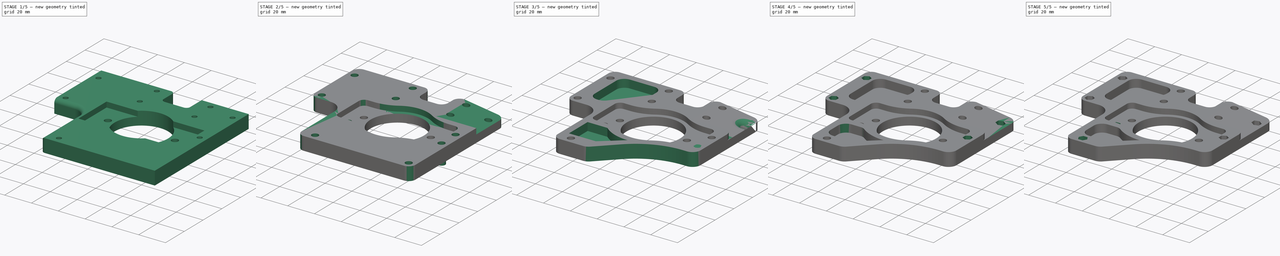
[diagram: build sequence overview — one tinted view per stage of 5, left to right]
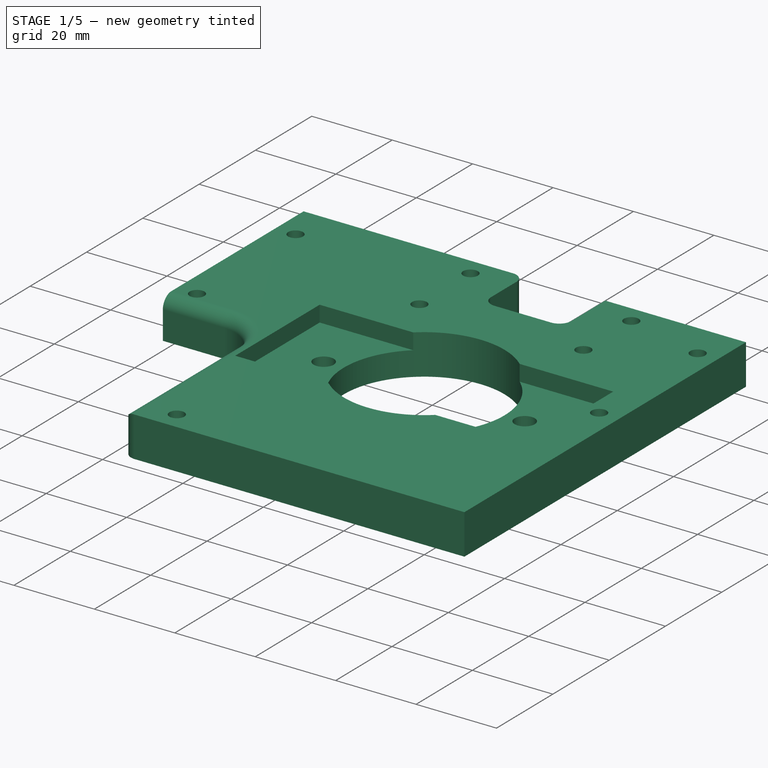
[diagram: stage 1 of 5 — iso view after this stage's code; geometry added in this stage tinted green]
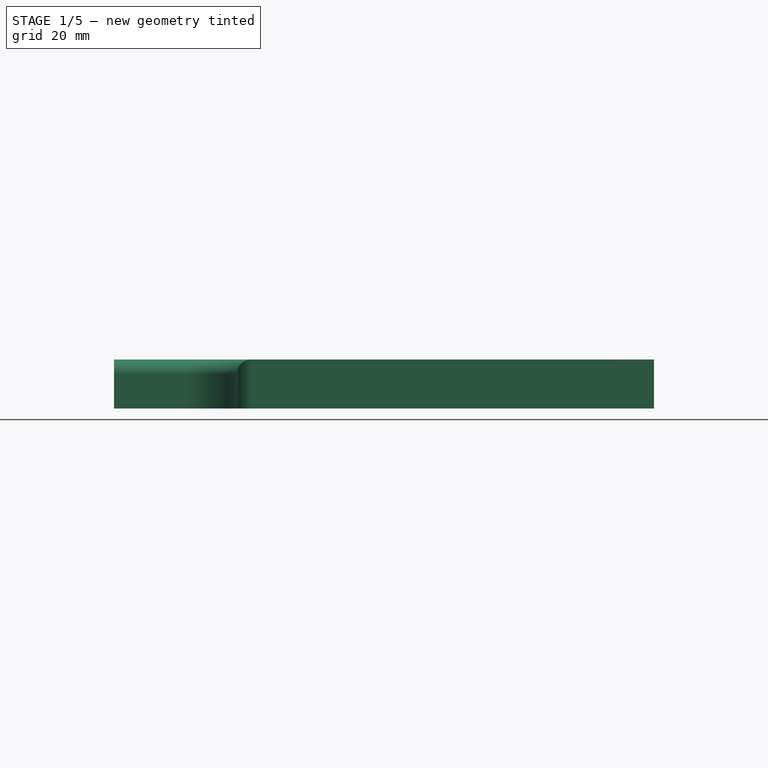
[diagram: stage 1 of 5 — front view after this stage's code; geometry added in this stage tinted green]
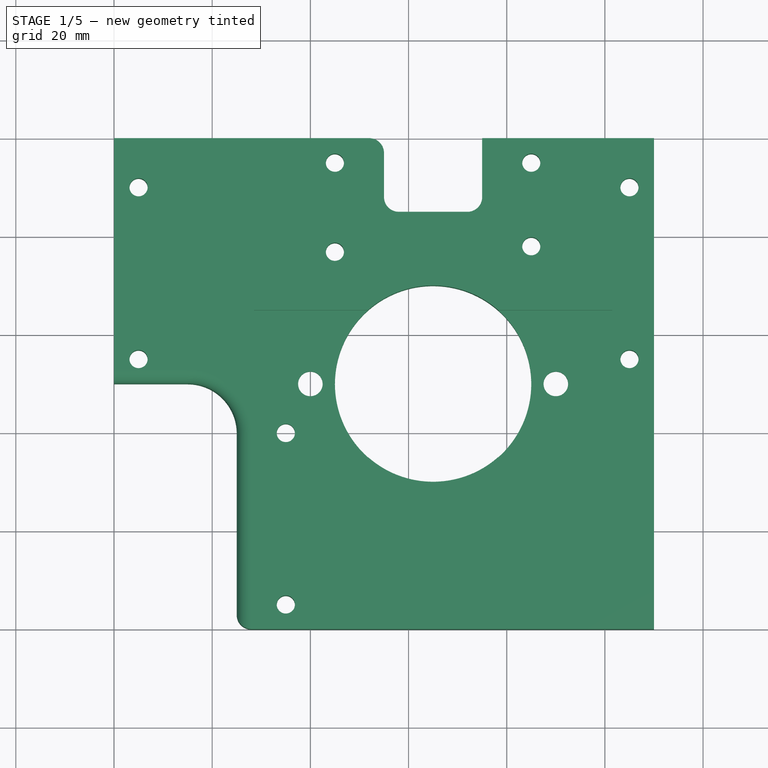
[diagram: stage 1 of 5 — top view after this stage's code; geometry added in this stage tinted green]
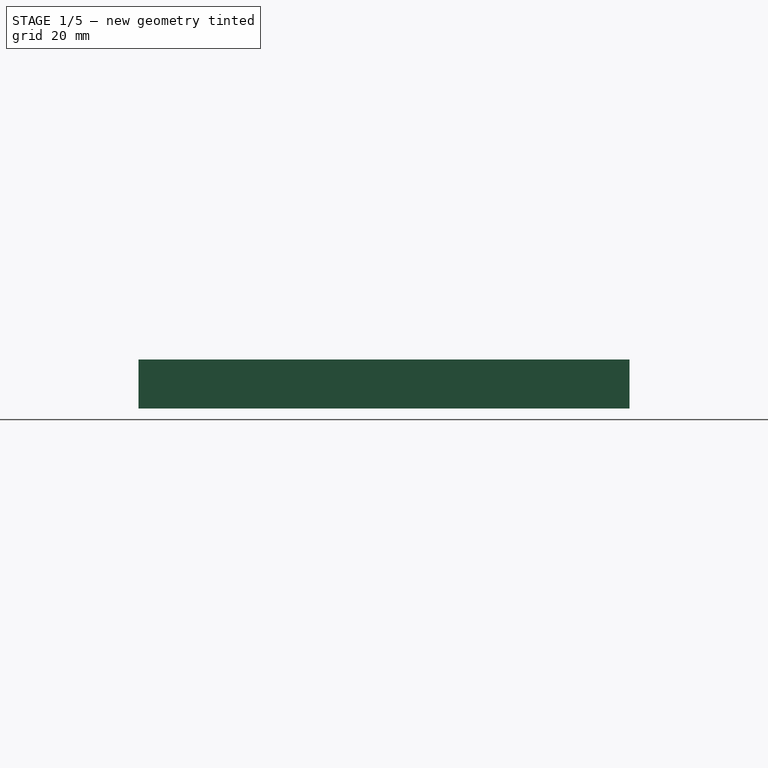
[diagram: stage 1 of 5 — right view after this stage's code; geometry added in this stage tinted green]
FCSTD DOCUMENT
Label: Anti-skip X Car.V1.4Hex
objects: Sketcher::SketchObject×19, PartDesign::Pocket×16, PartDesign::Fillet×8, PartDesign::Pad×2, PartDesign::LinearPattern×2
note: 65 computed .brp shape members not serialized (recipe doc carries the construction recipe); baked Part::Feature solids carry a one-line shape summary decoded from their .brp

FEATURE [Sketcher::SketchObject] Sketch
  sketch-geometry (25):
    g0: LineSegment StartX=25 StartY=0 StartZ=0 EndX=110 EndY=0 EndZ=0
    g1: LineSegment StartX=110 StartY=0 StartZ=0 EndX=110 EndY=100 EndZ=0
    g2: LineSegment StartX=110 StartY=100 StartZ=0 EndX=75 EndY=100 EndZ=0
    g3: LineSegment StartX=0 StartY=100 StartZ=0 EndX=0 EndY=50 EndZ=0
    g4: Circle CenterX=65 CenterY=50 CenterZ=0 NormalX=0 NormalY=0 NormalZ=1 Radius=20
    g5: Circle CenterX=105 CenterY=90 CenterZ=0 NormalX=0 NormalY=0 NormalZ=1 Radius=1.85
    g6: Circle [constr] CenterX=105 CenterY=5 CenterZ=0 NormalX=0 NormalY=0 NormalZ=1 Radius=1.85
    g7: Circle [constr] CenterX=105 CenterY=40 CenterZ=0 NormalX=0 NormalY=0 NormalZ=1 Radius=1.85
    g8: Circle CenterX=105 CenterY=55 CenterZ=0 NormalX=0 NormalY=0 NormalZ=1 Radius=1.85
    g9: Circle CenterX=90 CenterY=50 CenterZ=0 NormalX=0 NormalY=0 NormalZ=1 Radius=2.5
    g10: Circle CenterX=40 CenterY=50 CenterZ=0 NormalX=0 NormalY=0 NormalZ=1 Radius=2.5
    g11: Circle CenterX=5 CenterY=90 CenterZ=0 NormalX=0 NormalY=0 NormalZ=1 Radius=1.85
    g12: Circle CenterX=5 CenterY=55 CenterZ=0 NormalX=0 NormalY=0 NormalZ=1 Radius=1.85
    g13: Circle CenterX=35 CenterY=40 CenterZ=0 NormalX=0 NormalY=0 NormalZ=1 Radius=1.85
    g14: Circle CenterX=35 CenterY=5 CenterZ=0 NormalX=0 NormalY=0 NormalZ=1 Radius=1.85
    g15: LineSegment StartX=55 StartY=100 StartZ=0 EndX=55 EndY=85 EndZ=0
    g16: LineSegment StartX=55 StartY=85 StartZ=0 EndX=75 EndY=85 EndZ=0
    g17: LineSegment StartX=75 StartY=85 StartZ=0 EndX=75 EndY=100 EndZ=0
    g18: LineSegment StartX=55 StartY=100 StartZ=0 EndX=0 EndY=100 EndZ=0
    g19: LineSegment StartX=0 StartY=50 StartZ=0 EndX=25 EndY=50 EndZ=0
    g20: LineSegment StartX=25 StartY=50 StartZ=0 EndX=25 EndY=0 EndZ=0
    g21: Circle CenterX=45 CenterY=95 CenterZ=0 NormalX=0 NormalY=0 NormalZ=1 Radius=1.85
    g22: Circle CenterX=45 CenterY=76.8561 CenterZ=0 NormalX=0 NormalY=0 NormalZ=1 Radius=1.85
    g23: Circle CenterX=85 CenterY=95 CenterZ=0 NormalX=0 NormalY=0 NormalZ=1 Radius=1.85
    g24: Circle CenterX=85 CenterY=77.9862 CenterZ=0 NormalX=0 NormalY=0 NormalZ=1 Radius=1.85
  constraints (39):
    c: Coincident(g0,g1)
    c: Coincident(g1,g2)
    c: Coincident(g18,g3)
    c: Horizontal(g0)
    c: Horizontal(g2)
    c: Vertical(g1)
    c: Vertical(g3)
    c: DistanceX(g4) = 65
    c: DistanceY(g4) = 50
    c: Radius(g6) = 1.85
    c: Radius(g8) = 1.85
    c: Radius(g7) = 1.85
    c: Radius(g5) = 1.85
    c: Radius(g9) = 2.5
    c: Radius(g10) = 2.5
    c: Equal(g11,g12)
    c: Equal(g12,g13)
    c: Equal(g13,g14)
    c: Vertical(g15)
    c: Horizontal(g16)
    c: Coincident(g17,g16)
    c: Vertical(g17)
    c: Coincident(g2,g17)
    c: Coincident(g18,g15)
    c: Tangent(g2,g18)
    c: Horizontal(g19)
    c: Coincident(g20,g19)
    c: Vertical(g20)
    c: Coincident(g3,g19)
    c: Coincident(g0,g20)
    c: Equal(g22,g21)
    c: Equal(g21,g23)
    c: Equal(g23,g24)
    c: Equal(g24,g5)
    c: DistanceX(g21) = 45
    c: DistanceY(g21) = 95
    c: DistanceX(g23) = 85
    c: DistanceY(g23) = 95
    c: Equal(g11,g22)
FEATURE [PartDesign::Pad] Pad
  Length = 10
  Length2 = 100
  Sketch = -> Sketch
  Type = 0
FEATURE [PartDesign::Fillet] Fillet
  Base = -> Pad [Edge14]
  Radius = 10
FEATURE [PartDesign::Fillet] Fillet001
  Base = -> Fillet [Edge57,Edge59,Edge60,Edge3,Edge32,Edge58,Edge61,Edge63,Edge62]
  Radius = 3
FEATURE [Sketcher::SketchObject] Sketch001
  Placement = pos=(0,0,0) rot=(1,0,0;3.14159rad)
  Support = -> Fillet001 [Face2]
  sketch-geometry (2):
    g0: Circle CenterX=40 CenterY=-50 CenterZ=0 NormalX=0 NormalY=0 NormalZ=1 Radius=3.75
    g1: Circle [constr] CenterX=90 CenterY=-50 CenterZ=0 NormalX=0 NormalY=0 NormalZ=1 Radius=3.75
  constraints (2):
    c: Radius(g0) = 3.75
    c: Equal(g1,g0)
FEATURE [PartDesign::Pocket] Pocket
  Length = 3
  Sketch = -> Sketch001
  Type = 0
FEATURE [Sketcher::SketchObject] Sketch002
  Placement = pos=(0,0,0) rot=(1,0,0;3.14159rad)
  Support = -> Pocket [Face2]
  sketch-geometry (1):
    g0: Circle CenterX=90 CenterY=-50 CenterZ=0 NormalX=0 NormalY=0 NormalZ=1 Radius=3.75
  constraints (1):
    c: Radius(g0) = 3.75
FEATURE [PartDesign::Pocket] Pocket001
  Length = 3
  Sketch = -> Sketch002
  Type = 0
FEATURE [Sketcher::SketchObject] Sketch003
  Placement = pos=(0,0,10) rot=(0,0,1;0rad)
  Support = -> Pocket001 [Face5]
  sketch-geometry (8):
    g0: LineSegment [constr] StartX=65 StartY=50 StartZ=0 EndX=101.5 EndY=50 EndZ=0
    g1: LineSegment [constr] StartX=101.5 StartY=50 StartZ=0 EndX=101.5 EndY=65 EndZ=0
    g2: LineSegment [constr] StartX=101.5 StartY=65 StartZ=0 EndX=65 EndY=65 EndZ=0
    g3: LineSegment [constr] StartX=65 StartY=65 StartZ=0 EndX=65 EndY=50 EndZ=0
    g4: LineSegment StartX=101.5 StartY=65 StartZ=0 EndX=28.5 EndY=65 EndZ=0
    g5: LineSegment StartX=28.5 StartY=65 StartZ=0 EndX=28.5 EndY=35 EndZ=0
    g6: LineSegment StartX=28.5 StartY=35 StartZ=0 EndX=101.5 EndY=35 EndZ=0
    g7: LineSegment StartX=101.5 StartY=35 StartZ=0 EndX=101.5 EndY=65 EndZ=0
  constraints (23):
    c: Coincident(g0,g1)
    c: Coincident(g1,g2)
    c: Coincident(g2,g3)
    c: Coincident(g3,g0)
    c: Horizontal(g0)
    c: Horizontal(g2)
    c: Vertical(g1)
    c: Vertical(g3)
    c: DistanceX(g0) = 65
    c: DistanceY(g0) = 50
    c: DistanceY(g3) = -15
    c: DistanceX(g0) = 36.5
    c: Coincident(g4,g5)
    c: Coincident(g5,g6)
    c: Coincident(g6,g7)
    c: Coincident(g7,g4)
    c: Horizontal(g4)
    c: Horizontal(g6)
    c: Vertical(g5)
    c: Vertical(g7)
    c: Coincident(g4,g1)
    c: DistanceX(g4) = -73
    c: DistanceY(g5) = -30
FEATURE [PartDesign::Pocket] Pocket002
  Length = 4
  Sketch = -> Sketch003
  Type = 0
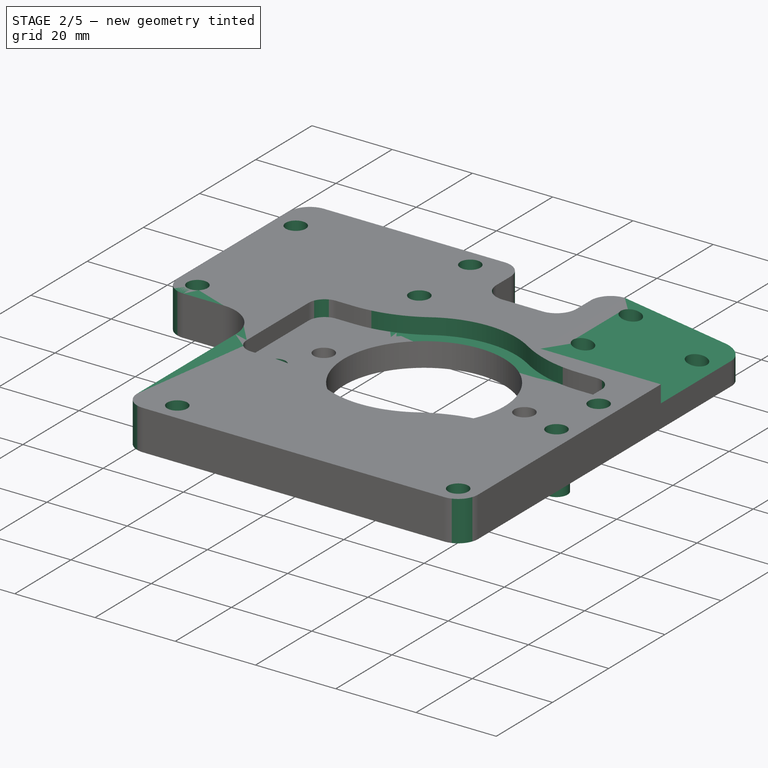
[diagram: stage 2 of 5 — iso view after this stage's code; geometry added in this stage tinted green]
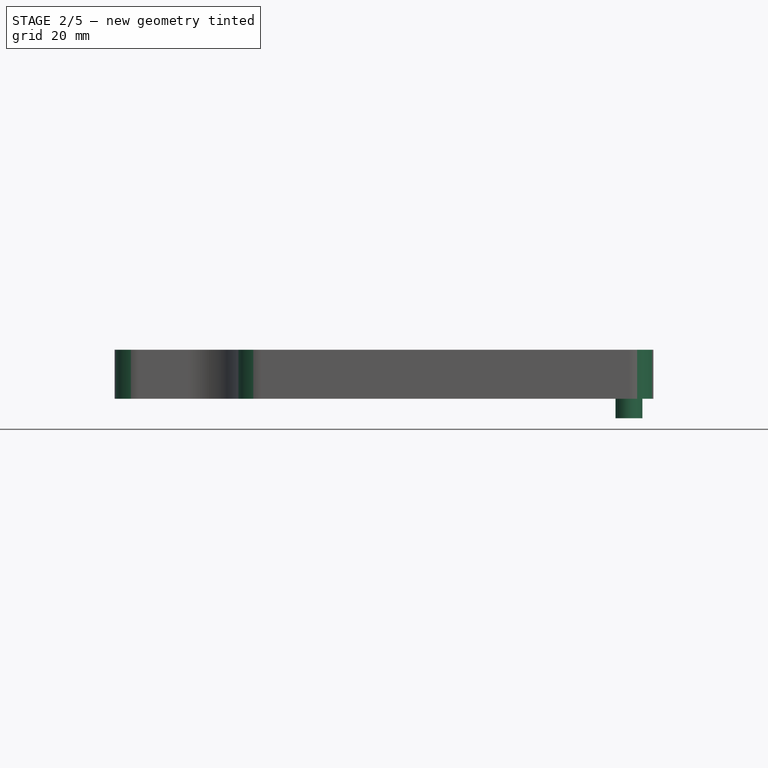
[diagram: stage 2 of 5 — front view after this stage's code; geometry added in this stage tinted green]
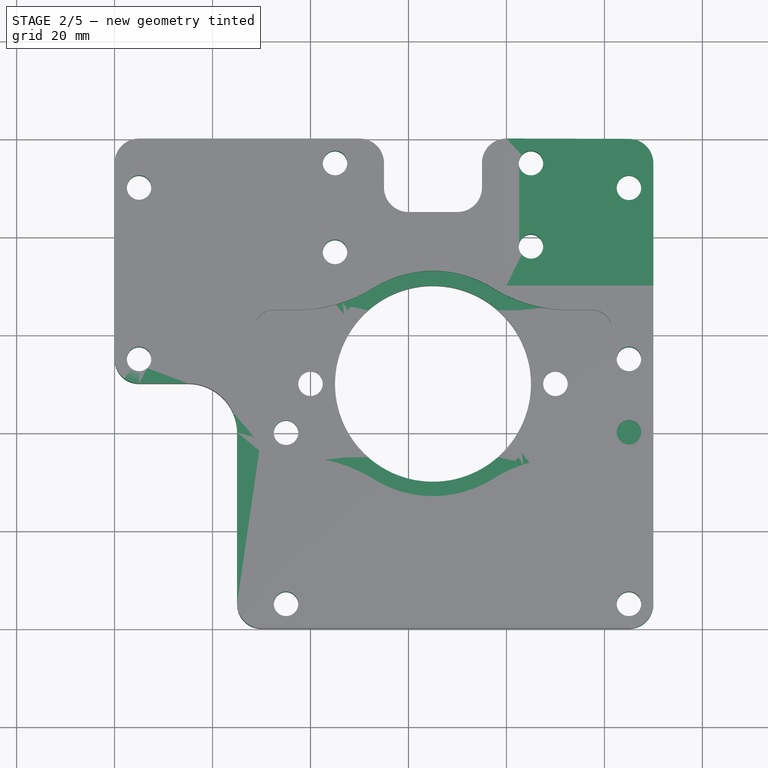
[diagram: stage 2 of 5 — top view after this stage's code; geometry added in this stage tinted green]
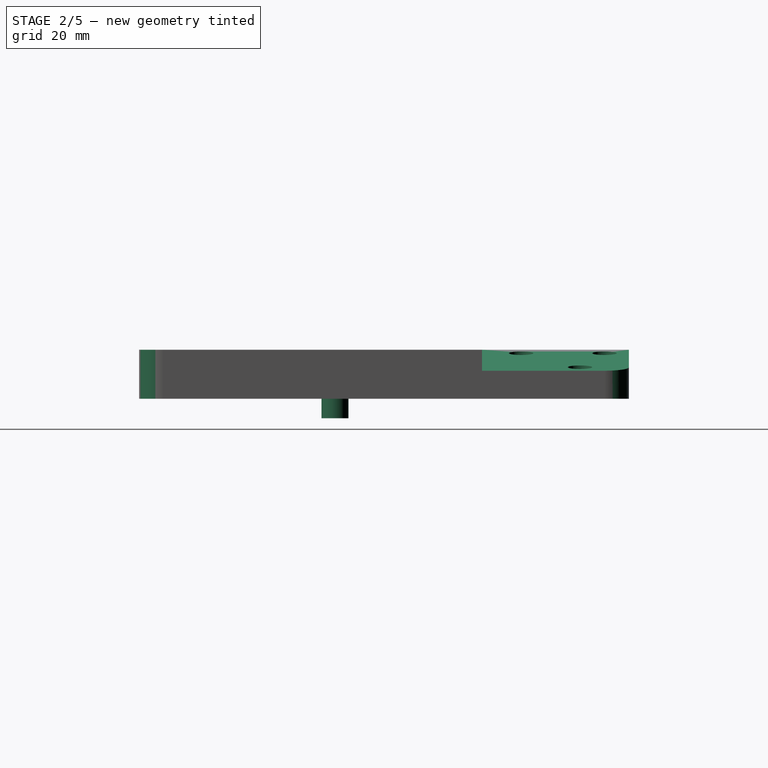
[diagram: stage 2 of 5 — right view after this stage's code; geometry added in this stage tinted green]
FEATURE [PartDesign::Fillet] Fillet002
  Base = -> Pocket002 [Edge127,Edge125,Edge130,Edge124]
  Radius = 4
FEATURE [Sketcher::SketchObject] Sketch004
  Placement = pos=(0,0,10) rot=(0,0,1;0rad)
  Support = -> Fillet002 [Face1]
  sketch-geometry (1):
    g0: Circle CenterX=65 CenterY=50 CenterZ=0 NormalX=0 NormalY=0 NormalZ=1 Radius=23
  constraints (3):
    c: DistanceX(g0) = 65
    c: DistanceY(g0) = 50
    c: Radius(g0) = 23
FEATURE [PartDesign::Pocket] Pocket003
  Length = 4
  Sketch = -> Sketch004
  Type = 0
FEATURE [PartDesign::Fillet] Fillet003
  Base = -> Pocket003 [Edge57,Edge68,Edge69,Edge48]
  Radius = 30
FEATURE [Sketcher::SketchObject] Sketch005
  Placement = pos=(0,100,0) rot=(0,0.707107,0.707107;3.14159rad)
  Support = -> Fillet003 [Face29]
  sketch-geometry (3):
    g0: LineSegment StartX=-80 StartY=10 StartZ=0 EndX=-150 EndY=0 EndZ=0
    g1: LineSegment StartX=-80 StartY=10 StartZ=0 EndX=-150 EndY=10 EndZ=0
    g2: LineSegment StartX=-150 StartY=10 StartZ=0 EndX=-150 EndY=0 EndZ=0
  constraints (5):
    c: Coincident(g1,g0)
    c: Horizontal(g1)
    c: Coincident(g2,g1)
    c: Coincident(g2,g0)
    c: Vertical(g2)
FEATURE [PartDesign::Pocket] Pocket004
  Length = 30
  Sketch = -> Sketch005
  Type = 0
FEATURE [Sketcher::SketchObject] Sketch006
  Placement = pos=(0,0,6) rot=(0,0,1;0rad)
  Support = -> Pocket004 [Face2]
  sketch-geometry (2):
    g0: Circle CenterX=105 CenterY=40 CenterZ=0 NormalX=0 NormalY=0 NormalZ=1 Radius=2.75
    g1: Circle [constr] CenterX=105 CenterY=5 CenterZ=0 NormalX=0 NormalY=0 NormalZ=1 Radius=2.75
  constraints (6):
    c: DistanceX(g1) = 105
    c: DistanceY(g1) = 5
    c: DistanceX(g0) = 105
    c: DistanceY(g0) = 40
    c: Radius(g0) = 2.75
    c: Equal(g1,g0)
FEATURE [PartDesign::Pad] Pad001
  Length = 10
  Length2 = 100
  Reversed = true
  Sketch = -> Sketch006
  Type = 0
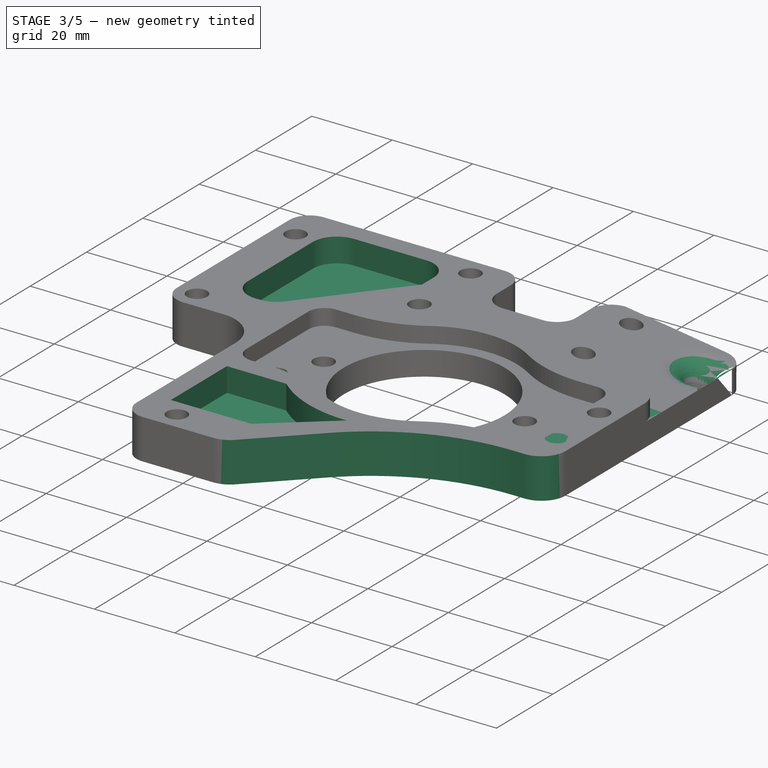
[diagram: stage 3 of 5 — iso view after this stage's code; geometry added in this stage tinted green]
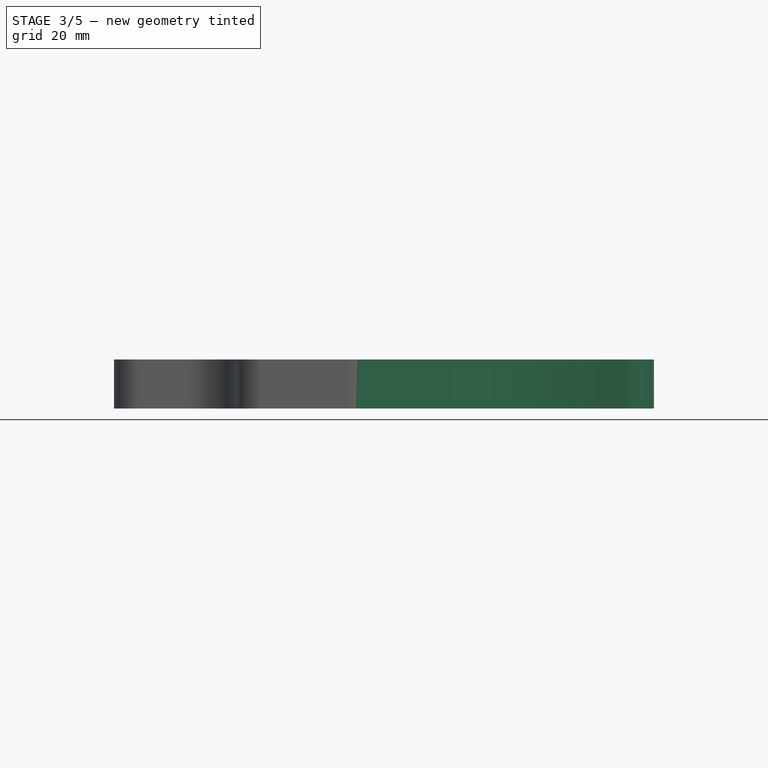
[diagram: stage 3 of 5 — front view after this stage's code; geometry added in this stage tinted green]
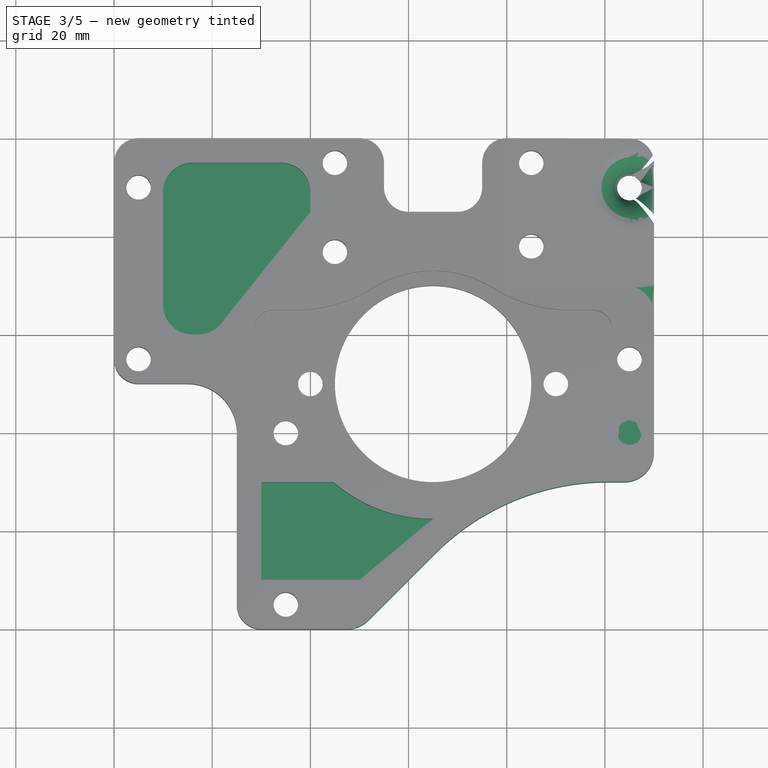
[diagram: stage 3 of 5 — top view after this stage's code; geometry added in this stage tinted green]
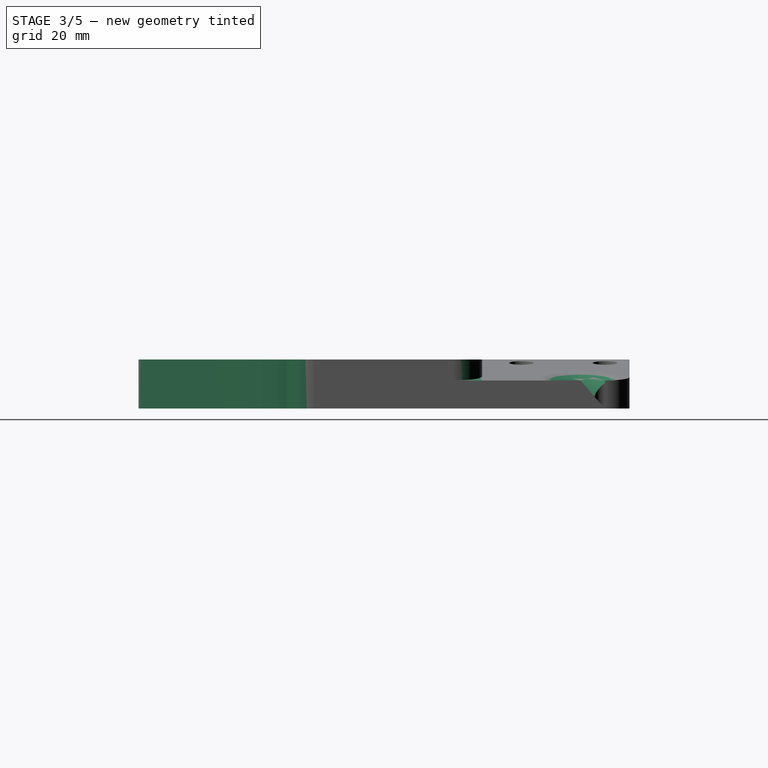
[diagram: stage 3 of 5 — right view after this stage's code; geometry added in this stage tinted green]
FEATURE [Sketcher::SketchObject] Sketch007
  Placement = pos=(0,0,6) rot=(0,0,1;0rad)
  Support = -> Pad001 [Face2]
  sketch-geometry (4):
    g0: LineSegment StartX=110 StartY=30 StartZ=0 EndX=80 EndY=30 EndZ=0
    g1: LineSegment StartX=50 StartY=0 StartZ=0 EndX=80 EndY=30 EndZ=0
    g2: LineSegment StartX=50 StartY=0 StartZ=0 EndX=110 EndY=0 EndZ=0
    g3: LineSegment StartX=110 StartY=0 StartZ=0 EndX=110 EndY=30 EndZ=0
  constraints (12):
    c: Horizontal(g0)
    c: Coincident(g1,g0)
    c: Coincident(g2,g1)
    c: Horizontal(g2)
    c: Coincident(g3,g2)
    c: Coincident(g3,g0)
    c: Vertical(g3)
    c: DistanceX(g1) = 50
    c: DistanceY(g1) = 0
    c: DistanceX(g2) = 60
    c: DistanceY(g3) = 30
    c: DistanceX(g0) = -30
FEATURE [PartDesign::Pocket] Pocket005
  Length = 5
  Sketch = -> Sketch007
  Type = 0
FEATURE [PartDesign::Fillet] Fillet004
  Base = -> Pocket005 [Edge57]
  Radius = 50
FEATURE [PartDesign::Fillet] Fillet005
  Base = -> Fillet004 [Edge55,Edge47]
  Radius = 6
FEATURE [Sketcher::SketchObject] Sketch008
  Placement = pos=(0,0,10) rot=(0,0,1;0rad)
  Support = -> Fillet005 [Face1]
  sketch-geometry (5):
    g0: LineSegment StartX=40 StartY=95 StartZ=0 EndX=10 EndY=95 EndZ=0
    g1: LineSegment StartX=10 StartY=95 StartZ=0 EndX=10 EndY=60 EndZ=0
    g2: LineSegment StartX=10 StartY=60 StartZ=0 EndX=20 EndY=60 EndZ=0
    g3: LineSegment StartX=40 StartY=95 StartZ=0 EndX=40 EndY=85 EndZ=0
    g4: LineSegment StartX=40 StartY=85 StartZ=0 EndX=20 EndY=60 EndZ=0
  constraints (15):
    c: Horizontal(g0)
    c: Coincident(g1,g0)
    c: Vertical(g1)
    c: Coincident(g2,g1)
    c: Horizontal(g2)
    c: Coincident(g3,g0)
    c: Vertical(g3)
    c: Coincident(g4,g3)
    c: Coincident(g4,g2)
    c: DistanceX(g0) = 10
    c: DistanceY(g0) = 95
    c: DistanceY(g1) = -35
    c: DistanceX(g0) = -30
    c: DistanceY(g3) = -10
    c: DistanceX(g2) = 10
FEATURE [PartDesign::Pocket] Pocket006
  Length = 6
  Sketch = -> Sketch008
  Type = 0
FEATURE [Sketcher::SketchObject] Sketch009
  Placement = pos=(0,0,10) rot=(0,0,1;0rad)
  Support = -> Pocket006 [Face2]
  sketch-geometry (5):
    g0: LineSegment StartX=30 StartY=10 StartZ=0 EndX=30 EndY=29.8912 EndZ=0
    g1: LineSegment StartX=30 StartY=10 StartZ=0 EndX=50 EndY=10 EndZ=0
    g2: LineSegment StartX=50 StartY=10 StartZ=0 EndX=65 EndY=22.47 EndZ=0
    g3: LineSegment StartX=30 StartY=29.8912 StartZ=0 EndX=44.7945 EndY=29.8912 EndZ=0
    g4: ArcOfCircle CenterX=64.5518 CenterY=52.4666 CenterZ=0 NormalX=0 NormalY=0 NormalZ=1 Radius=30 StartAngle=3.99346 EndAngle=4.72733
  constraints (15):
    c: Vertical(g0)
    c: Coincident(g1,g0)
    c: Horizontal(g1)
    c: Coincident(g3,g0)
    c: Horizontal(g3)
    c: Coincident(g4,g3)
    c: Coincident(g2,g4)
    c: DistanceX(g0) = 30
    c: DistanceY(g0) = 10
    c: DistanceY(g0) = 19.8912
    c: DistanceX(g1) = 20
    c: DistanceX(g3) = 14.7945
    c: DistanceX(g2) = 65
    c: DistanceY(g2) = 22.47
    c: Radius(g4) = 30
FEATURE [PartDesign::Pocket] Pocket007
  Length = 6
  Sketch = -> Sketch009
  Type = 0
FEATURE [PartDesign::Fillet] Fillet006
  Base = -> Pocket007 [Edge112,Edge117,Edge119,Edge115,Edge114,Edge108,Edge102,Edge104,Edge110]
  Radius = 6
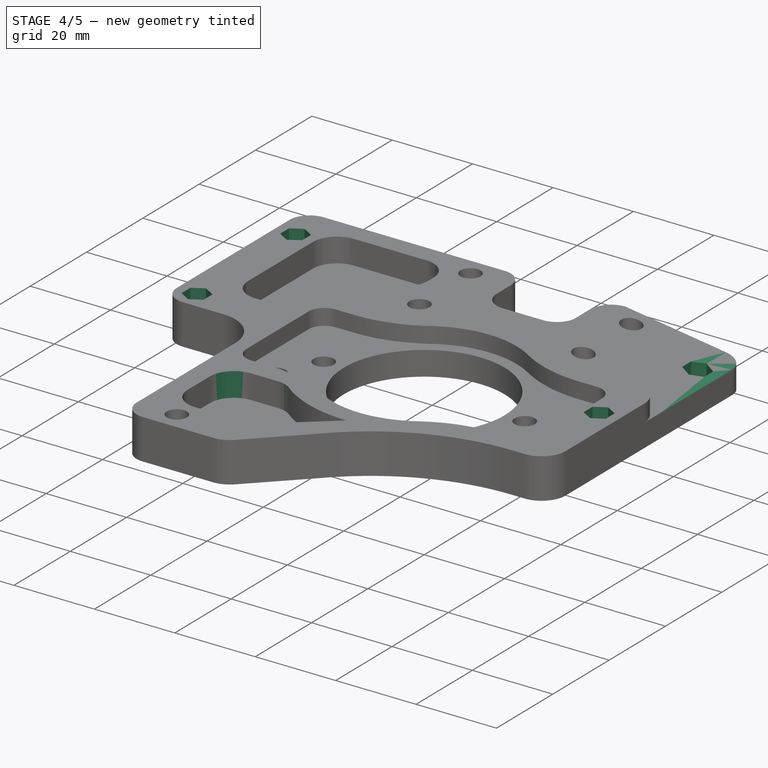
[diagram: stage 4 of 5 — iso view after this stage's code; geometry added in this stage tinted green]
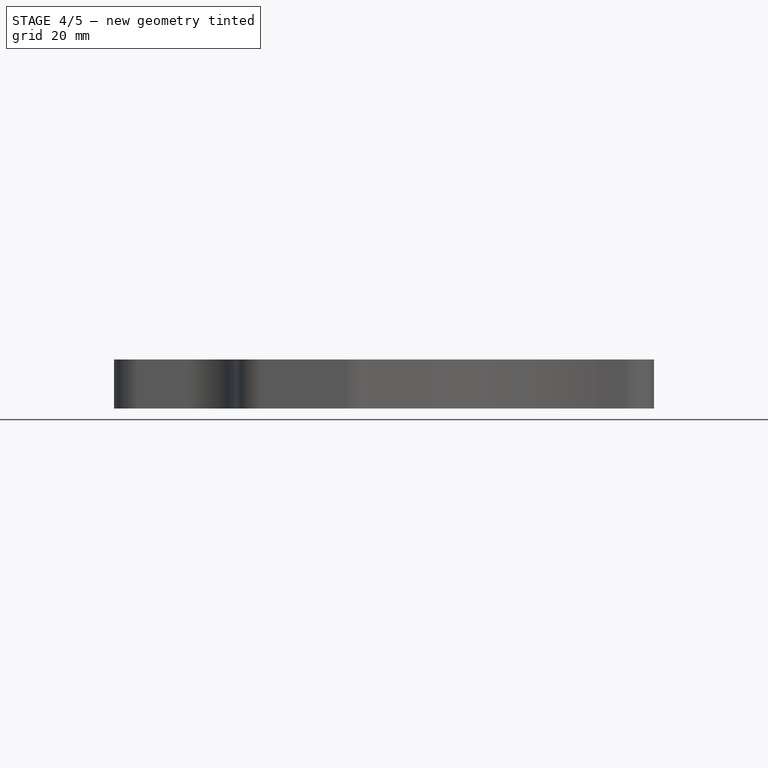
[diagram: stage 4 of 5 — front view after this stage's code; geometry added in this stage tinted green]
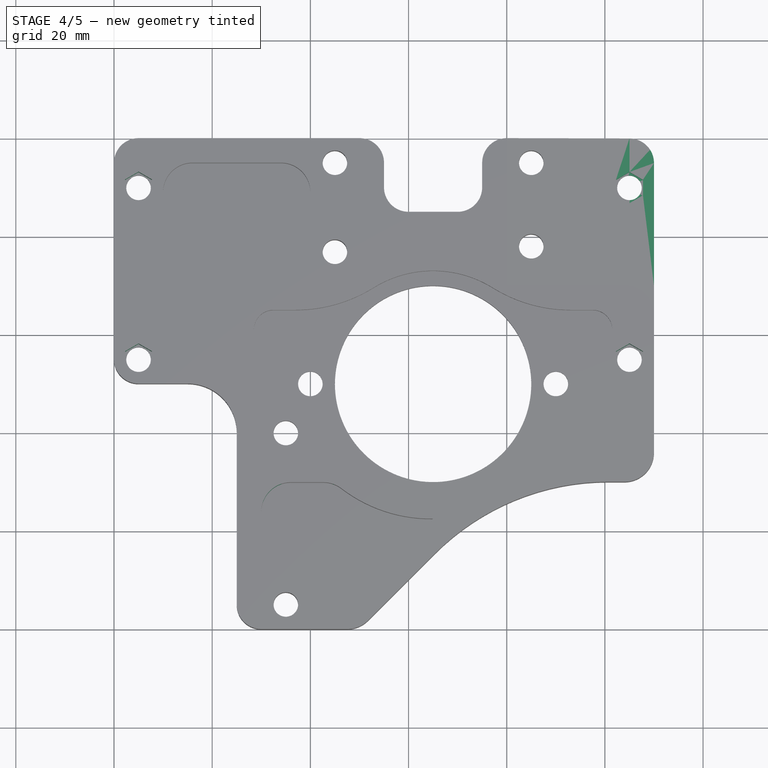
[diagram: stage 4 of 5 — top view after this stage's code; geometry added in this stage tinted green]
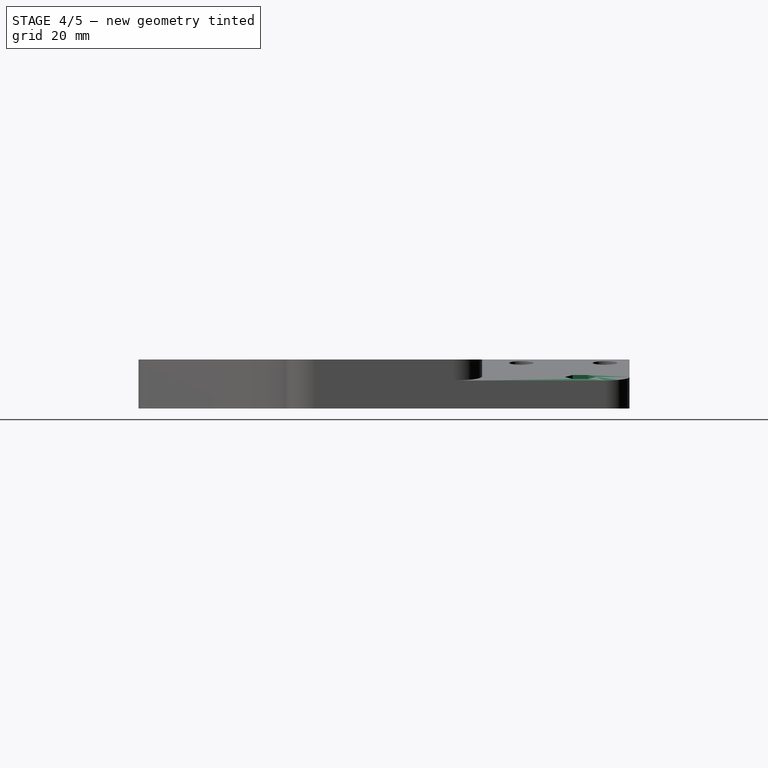
[diagram: stage 4 of 5 — right view after this stage's code; geometry added in this stage tinted green]
FEATURE [PartDesign::Fillet] Fillet007
  Base = -> Fillet006 [Edge92]
  Radius = 6
FEATURE [Sketcher::SketchObject] Sketch010
  Placement = pos=(0,0,10) rot=(0,0,1;0rad)
  Support = -> Fillet007 [Face1]
  sketch-geometry (7):
    g0: Circle [constr] CenterX=5 CenterY=90 CenterZ=0 NormalX=0 NormalY=0 NormalZ=1 Radius=2.75
    g1: LineSegment StartX=5 StartY=93.1754 StartZ=0 EndX=7.75 EndY=91.5877 EndZ=0
    g2: LineSegment StartX=7.75 StartY=91.5877 StartZ=0 EndX=7.75 EndY=88.4123 EndZ=0
    g3: LineSegment StartX=7.75 StartY=88.4123 StartZ=0 EndX=5 EndY=86.8246 EndZ=0
    g4: LineSegment StartX=5 StartY=86.8246 StartZ=0 EndX=2.25 EndY=88.4123 EndZ=0
    g5: LineSegment StartX=2.25 StartY=88.4123 StartZ=0 EndX=2.25 EndY=91.5877 EndZ=0
    g6: LineSegment StartX=2.25 StartY=91.5877 StartZ=0 EndX=5 EndY=93.1754 EndZ=0
  constraints (22):
    c: Radius(g0) = 2.75
    c: Tangent(g1,g0)
    c: Coincident(g2,g1)
    c: Tangent(g2,g0)
    c: Coincident(g3,g2)
    c: Tangent(g3,g0)
    c: Coincident(g4,g3)
    c: Tangent(g4,g0)
    c: Coincident(g5,g4)
    c: Vertical(g5)
    c: Tangent(g5,g0)
    c: Coincident(g6,g5)
    c: Coincident(g6,g1)
    c: Tangent(g6,g0)
    c: Vertical(g2)
    c: Equal(g1,g2)
    c: Equal(g2,g3)
    c: Equal(g3,g6)
    c: Equal(g3,g4)
    c: Equal(g4,g5)
    c: DistanceX(g0) = 5
    c: DistanceY(g0) = 90
FEATURE [PartDesign::Pocket] Pocket008  label="Hex Hole 1"
  Length = 7
  Sketch = -> Sketch010
  Type = 0
FEATURE [Sketcher::SketchObject] Sketch011
  Placement = pos=(0,0,10) rot=(0,0,1;0rad)
  Support = -> Pocket008 [Face2]
  sketch-geometry (7):
    g0: Circle [constr] CenterX=5 CenterY=55 CenterZ=0 NormalX=0 NormalY=0 NormalZ=1 Radius=2.75
    g1: LineSegment StartX=5 StartY=51.8246 StartZ=0 EndX=7.75 EndY=53.4123 EndZ=0
    g2: LineSegment StartX=7.75 StartY=53.4123 StartZ=0 EndX=7.75 EndY=56.5877 EndZ=0
    g3: LineSegment StartX=7.75 StartY=56.5877 StartZ=0 EndX=5 EndY=58.1754 EndZ=0
    g4: LineSegment StartX=5 StartY=58.1754 StartZ=0 EndX=2.25 EndY=56.5877 EndZ=0
    g5: LineSegment StartX=2.25 StartY=56.5877 StartZ=0 EndX=2.25 EndY=53.4123 EndZ=0
    g6: LineSegment StartX=2.25 StartY=53.4123 StartZ=0 EndX=5 EndY=51.8246 EndZ=0
  constraints (22):
    c: Radius(g0) = 2.75
    c: Tangent(g1,g0)
    c: Coincident(g1,g2)
    c: Tangent(g2,g0)
    c: Coincident(g2,g3)
    c: Tangent(g3,g0)
    c: Coincident(g3,g4)
    c: Tangent(g4,g0)
    c: Coincident(g4,g5)
    c: Tangent(g5,g0)
    c: Coincident(g5,g6)
    c: Tangent(g6,g0)
    c: Coincident(g6,g1)
    c: Vertical(g2)
    c: Vertical(g5)
    c: Equal(g2,g5)
    c: Equal(g5,g6)
    c: Equal(g6,g1)
    c: Equal(g4,g3)
    c: Equal(g3,g2)
    c: DistanceX(g0) = 5
    c: DistanceY(g0) = 55
FEATURE [PartDesign::Pocket] Pocket009  label="Hex Hole 2"
  Length = 7
  Sketch = -> Sketch011
  Type = 0
FEATURE [Sketcher::SketchObject] Sketch012
  Placement = pos=(0,0,10) rot=(0,0,1;0rad)
  Support = -> Pocket009 [Face2]
  sketch-geometry (7):
    g0: Circle [constr] CenterX=105 CenterY=55 CenterZ=0 NormalX=0 NormalY=0 NormalZ=1 Radius=2.75
    g1: LineSegment StartX=105 StartY=58.1754 StartZ=0 EndX=107.75 EndY=56.5877 EndZ=0
    g2: LineSegment StartX=107.75 StartY=56.5877 StartZ=0 EndX=107.75 EndY=53.4123 EndZ=0
    g3: LineSegment StartX=107.75 StartY=53.4123 StartZ=0 EndX=105 EndY=51.8246 EndZ=0
    g4: LineSegment StartX=105 StartY=51.8246 StartZ=0 EndX=102.25 EndY=53.4123 EndZ=0
    g5: LineSegment StartX=102.25 StartY=53.4123 StartZ=0 EndX=102.25 EndY=56.5877 EndZ=0
    g6: LineSegment StartX=102.25 StartY=56.5877 StartZ=0 EndX=105 EndY=58.1754 EndZ=0
  constraints (22):
    c: Tangent(g1,g0)
    c: Coincident(g2,g1)
    c: Tangent(g2,g0)
    c: Coincident(g2,g3)
    c: Tangent(g3,g0)
    c: Coincident(g3,g4)
    c: Tangent(g4,g0)
    c: Coincident(g4,g5)
    c: Tangent(g5,g0)
    c: Coincident(g5,g6)
    c: Coincident(g6,g1)
    c: Tangent(g6,g0)
    c: Vertical(g2)
    c: Vertical(g5)
    c: Equal(g1,g6)
    c: Equal(g6,g5)
    c: Equal(g5,g4)
    c: Equal(g4,g3)
    c: Equal(g3,g2)
    c: Radius(g0) = 2.75
    c: DistanceX(g0) = 105
    c: DistanceY(g0) = 55
FEATURE [PartDesign::Pocket] Pocket010
  Length = 7
  Sketch = -> Sketch012
  Type = 0
FEATURE [Sketcher::SketchObject] Sketch013
  Placement = pos=(0,0,10) rot=(0,0,1;0rad)
  Support = -> Pocket010 [Face2]
  sketch-geometry (7):
    g0: Circle [constr] CenterX=105 CenterY=90 CenterZ=0 NormalX=0 NormalY=0 NormalZ=1 Radius=2.75
    g1: LineSegment StartX=105 StartY=93.1754 StartZ=0 EndX=107.75 EndY=91.5877 EndZ=0
    g2: LineSegment StartX=107.75 StartY=91.5877 StartZ=0 EndX=107.75 EndY=88.4123 EndZ=0
    g3: LineSegment StartX=107.75 StartY=88.4123 StartZ=0 EndX=105 EndY=86.8246 EndZ=0
    g4: LineSegment StartX=105 StartY=93.1754 StartZ=0 EndX=102.25 EndY=91.5877 EndZ=0
    g5: LineSegment StartX=102.25 StartY=91.5877 StartZ=0 EndX=102.25 EndY=88.4123 EndZ=0
    g6: LineSegment StartX=102.25 StartY=88.4123 StartZ=0 EndX=105 EndY=86.8246 EndZ=0
  constraints (22):
    c: Tangent(g1,g0)
    c: Coincident(g1,g2)
    c: Tangent(g2,g0)
    c: Coincident(g2,g3)
    c: Tangent(g3,g0)
    c: Coincident(g1,g4)
    c: Tangent(g4,g0)
    c: Coincident(g4,g5)
    c: Tangent(g5,g0)
    c: Coincident(g5,g6)
    c: Coincident(g6,g3)
    c: Tangent(g6,g0)
    c: Vertical(g2)
    c: Vertical(g5)
    c: Equal(g2,g1)
    c: Equal(g1,g4)
    c: Equal(g4,g5)
    c: Equal(g3,g6)
    c: Equal(g6,g2)
    c: Radius(g0) = 2.75
    c: DistanceX(g0) = 105
    c: DistanceY(g0) = 90
FEATURE [PartDesign::Pocket] Pocket011
  Length = 7
  Sketch = -> Sketch013
  Type = 0
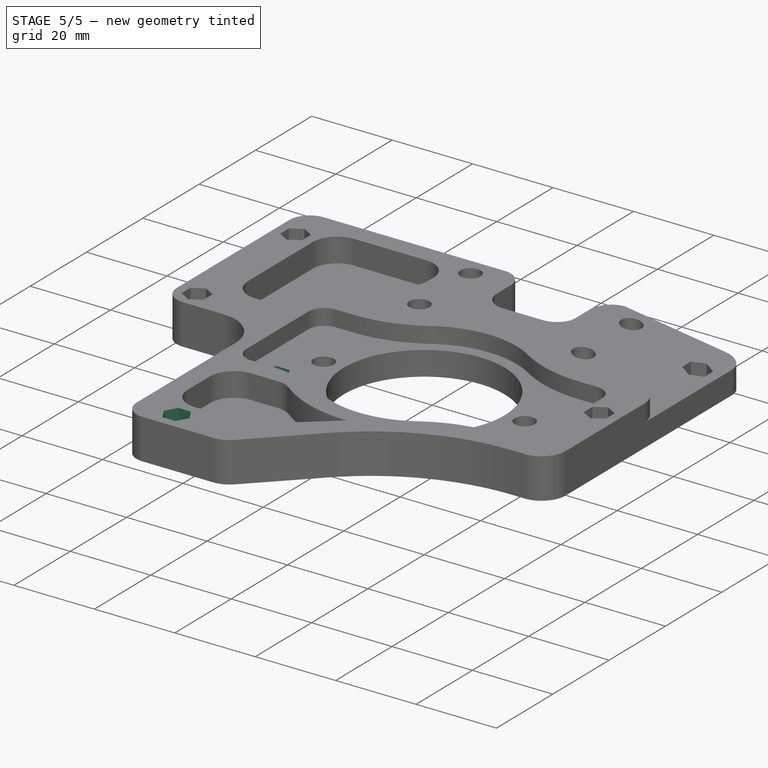
[diagram: stage 5 of 5 — iso view after this stage's code; geometry added in this stage tinted green]
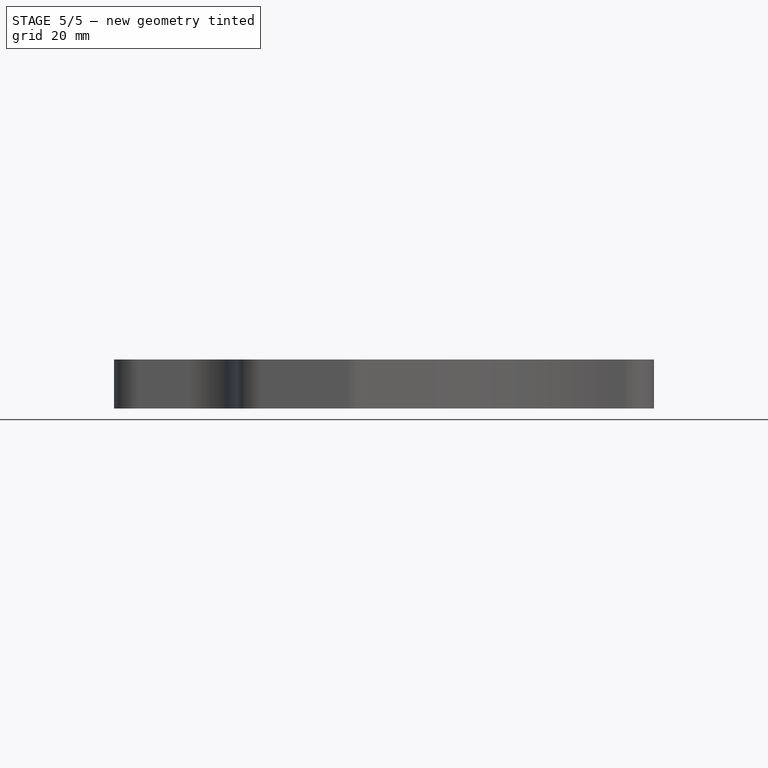
[diagram: stage 5 of 5 — front view after this stage's code; geometry added in this stage tinted green]
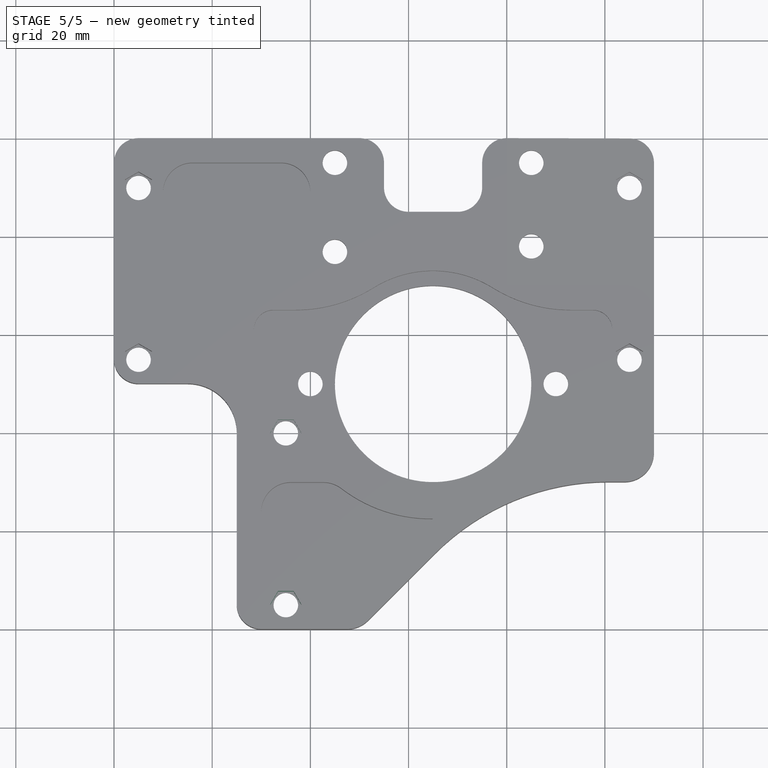
[diagram: stage 5 of 5 — top view after this stage's code; geometry added in this stage tinted green]
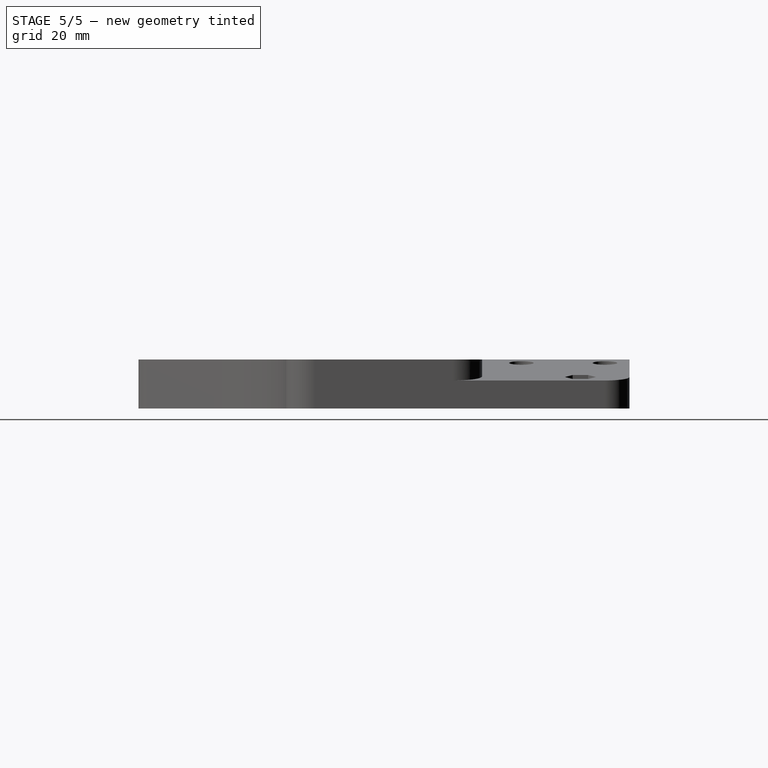
[diagram: stage 5 of 5 — right view after this stage's code; geometry added in this stage tinted green]
FEATURE [Sketcher::SketchObject] Sketch014
  Placement = pos=(0,0,10) rot=(0,0,1;0rad)
  Support = -> Pocket011 [Face2]
  sketch-geometry (7):
    g0: Circle [constr] CenterX=35 CenterY=40 CenterZ=0 NormalX=0 NormalY=0 NormalZ=1 Radius=2.75
    g1: LineSegment StartX=36.5877 StartY=42.75 StartZ=0 EndX=33.4123 EndY=42.75 EndZ=0
    g2: LineSegment StartX=33.4123 StartY=42.75 StartZ=0 EndX=31.8246 EndY=40 EndZ=0
    g3: LineSegment StartX=31.8246 StartY=40 StartZ=0 EndX=33.4123 EndY=37.25 EndZ=0
    g4: LineSegment StartX=33.4123 StartY=37.25 StartZ=0 EndX=36.5877 EndY=37.25 EndZ=0
    g5: LineSegment StartX=36.5877 StartY=37.25 StartZ=0 EndX=38.1754 EndY=40 EndZ=0
    g6: LineSegment StartX=38.1754 StartY=40 StartZ=0 EndX=36.5877 EndY=42.75 EndZ=0
  constraints (22):
    c: Horizontal(g1)
    c: Tangent(g1,g0)
    c: Coincident(g1,g2)
    c: Tangent(g2,g0)
    c: Coincident(g2,g3)
    c: Tangent(g3,g0)
    c: Coincident(g3,g4)
    c: Horizontal(g4)
    c: Tangent(g4,g0)
    c: Coincident(g4,g5)
    c: Tangent(g5,g0)
    c: Coincident(g5,g6)
    c: Coincident(g6,g1)
    c: Tangent(g6,g0)
    c: Equal(g3,g2)
    c: Equal(g2,g1)
    c: Equal(g1,g6)
    c: Equal(g6,g5)
    c: Equal(g5,g4)
    c: DistanceX(g0) = 35
    c: DistanceY(g0) = 40
    c: Radius(g0) = 2.75
FEATURE [PartDesign::Pocket] Pocket012
  Length = 7
  Sketch = -> Sketch014
  Type = 0
FEATURE [PartDesign::LinearPattern] LinearPattern
  Direction = -> Sketch014 [V_Axis]
  Length = 35
  Occurrences = 2
  Originals = -> [Pocket012]
  Reversed = true
FEATURE [Sketcher::SketchObject] Sketch015
  Placement = pos=(0,0,0) rot=(1,0,0;3.14159rad)
  Support = -> LinearPattern [Face6]
  sketch-geometry (7):
    g0: Circle [constr] CenterX=45 CenterY=-95 CenterZ=0 NormalX=0 NormalY=0 NormalZ=1 Radius=2.75
    g1: LineSegment StartX=43.4123 StartY=-92.25 StartZ=0 EndX=46.5877 EndY=-92.25 EndZ=0
    g2: LineSegment StartX=46.5877 StartY=-92.25 StartZ=0 EndX=48.1754 EndY=-95 EndZ=0
    g3: LineSegment StartX=48.1754 StartY=-95 StartZ=0 EndX=46.5877 EndY=-97.75 EndZ=0
    g4: LineSegment StartX=46.5877 StartY=-97.75 StartZ=0 EndX=43.4123 EndY=-97.75 EndZ=0
    g5: LineSegment StartX=43.4123 StartY=-97.75 StartZ=0 EndX=41.8246 EndY=-95 EndZ=0
    g6: LineSegment StartX=41.8246 StartY=-95 StartZ=0 EndX=43.4123 EndY=-92.25 EndZ=0
  constraints (22):
    c: Horizontal(g1)
    c: Tangent(g1,g0)
    c: Coincident(g1,g2)
    c: Tangent(g2,g0)
    c: Coincident(g2,g3)
    c: Tangent(g3,g0)
    c: Coincident(g3,g4)
    c: Horizontal(g4)
    c: Tangent(g4,g0)
    c: Coincident(g4,g5)
    c: Tangent(g5,g0)
    c: Coincident(g5,g6)
    c: Coincident(g6,g1)
    c: Tangent(g6,g0)
    c: Equal(g1,g2)
    c: Equal(g2,g3)
    c: Equal(g3,g4)
    c: Equal(g4,g5)
    c: Equal(g5,g6)
    c: Radius(g0) = 2.75
    c: DistanceX(g0) = 45
    c: DistanceY(g0) = -95
FEATURE [PartDesign::Pocket] Pocket013
  Length = 5
  Sketch = -> Sketch015
  Type = 0
FEATURE [PartDesign::LinearPattern] LinearPattern001
  Direction = -> Sketch015 [H_Axis]
  Length = 40
  Occurrences = 2
  Originals = -> [Pocket013]
FEATURE [Sketcher::SketchObject] Sketch016
  Placement = pos=(0,0,0) rot=(1,0,0;3.14159rad)
  Support = -> LinearPattern001 [Face6]
  sketch-geometry (7):
    g0: Circle [constr] CenterX=44.9628 CenterY=-77.0402 CenterZ=0 NormalX=0 NormalY=0 NormalZ=1 Radius=2.75
    g1: LineSegment StartX=43.3751 StartY=-74.2902 StartZ=0 EndX=46.5505 EndY=-74.2902 EndZ=0
    g2: LineSegment StartX=46.5505 StartY=-74.2902 StartZ=0 EndX=48.1382 EndY=-77.0402 EndZ=0
    g3: LineSegment StartX=48.1382 StartY=-77.0402 StartZ=0 EndX=46.5505 EndY=-79.7902 EndZ=0
    g4: LineSegment StartX=46.5505 StartY=-79.7902 StartZ=0 EndX=43.3751 EndY=-79.7902 EndZ=0
    g5: LineSegment StartX=43.3751 StartY=-79.7902 StartZ=0 EndX=41.7874 EndY=-77.0402 EndZ=0
    g6: LineSegment StartX=41.7874 StartY=-77.0402 StartZ=0 EndX=43.3751 EndY=-74.2902 EndZ=0
  constraints (22):
    c: Horizontal(g1)
    c: Tangent(g1,g0)
    c: Coincident(g1,g2)
    c: Tangent(g2,g0)
    c: Coincident(g2,g3)
    c: Tangent(g3,g0)
    c: Coincident(g3,g4)
    c: Horizontal(g4)
    c: Tangent(g4,g0)
    c: Coincident(g4,g5)
    c: Tangent(g5,g0)
    c: Coincident(g5,g6)
    c: Coincident(g6,g1)
    c: Tangent(g6,g0)
    c: Equal(g1,g2)
    c: Equal(g2,g3)
    c: Equal(g3,g4)
    c: Equal(g4,g5)
    c: Equal(g5,g6)
    c: DistanceX(g0) = 44.9628
    c: DistanceY(g0) = -77.0402
    c: Radius(g0) = 2.75
FEATURE [PartDesign::Pocket] Pocket014
  Length = 5
  Sketch = -> Sketch016
  Type = 0
FEATURE [Sketcher::SketchObject] Sketch017
  Placement = pos=(0,0,0) rot=(1,0,0;3.14159rad)
  Support = -> Pocket013 [Face6]
FEATURE [Sketcher::SketchObject] Sketch018
  Placement = pos=(0,0,0) rot=(1,0,0;3.14159rad)
  Support = -> Pocket014 [Face6]
  sketch-geometry (7):
    g0: Circle [constr] CenterX=85 CenterY=-78 CenterZ=0 NormalX=0 NormalY=0 NormalZ=1 Radius=2.75
    g1: LineSegment StartX=83.4123 StartY=-75.25 StartZ=0 EndX=86.5877 EndY=-75.25 EndZ=0
    g2: LineSegment StartX=86.5877 StartY=-75.25 StartZ=0 EndX=88.1754 EndY=-78 EndZ=0
    g3: LineSegment StartX=88.1754 StartY=-78 StartZ=0 EndX=86.5877 EndY=-80.75 EndZ=0
    g4: LineSegment StartX=86.5877 StartY=-80.75 StartZ=0 EndX=83.4123 EndY=-80.75 EndZ=0
    g5: LineSegment StartX=83.4123 StartY=-80.75 StartZ=0 EndX=81.8246 EndY=-78 EndZ=0
    g6: LineSegment StartX=81.8246 StartY=-78 StartZ=0 EndX=83.4123 EndY=-75.25 EndZ=0
  constraints (22):
    c: Horizontal(g1)
    c: Tangent(g1,g0)
    c: Coincident(g1,g2)
    c: Tangent(g2,g0)
    c: Coincident(g2,g3)
    c: Tangent(g3,g0)
    c: Coincident(g3,g4)
    c: Horizontal(g4)
    c: Tangent(g4,g0)
    c: Coincident(g4,g5)
    c: Tangent(g5,g0)
    c: Coincident(g5,g6)
    c: Coincident(g6,g1)
    c: Tangent(g6,g0)
    c: Equal(g1,g2)
    c: Equal(g2,g3)
    c: Equal(g3,g4)
    c: Equal(g4,g5)
    c: Equal(g5,g6)
    c: DistanceX(g0) = 85
    c: DistanceY(g0) = -78
    c: Radius(g0) = 2.75
FEATURE [PartDesign::Pocket] Pocket015
  Length = 5
  Sketch = -> Sketch018
  Type = 0
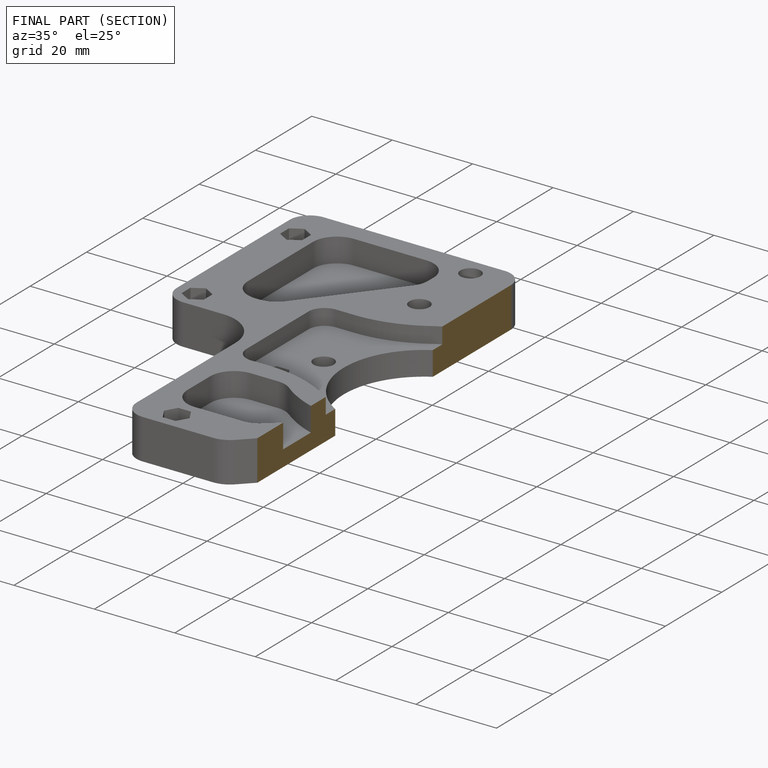
[diagram: finished part — half-section view (interior)]
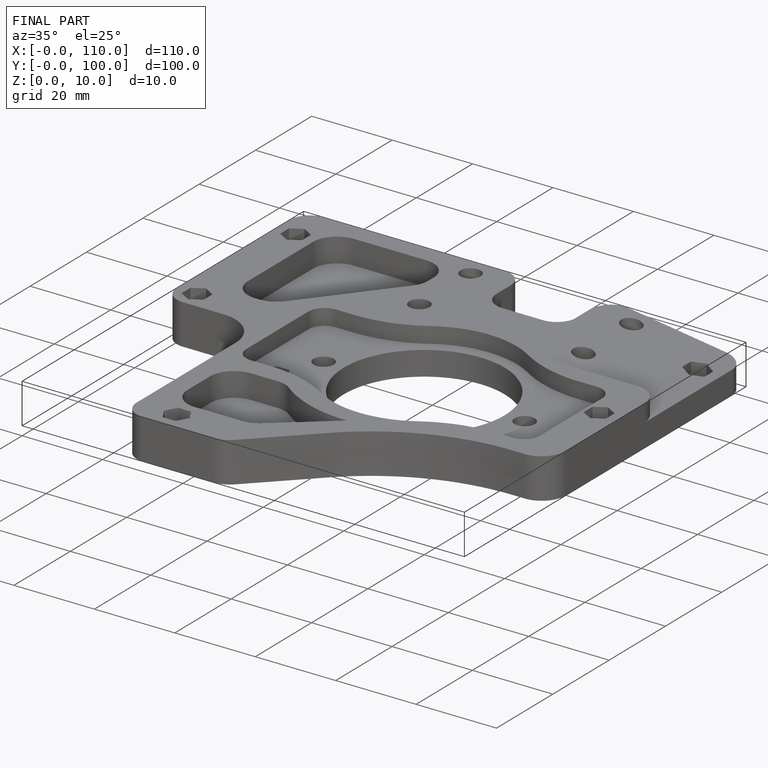
[diagram: finished part — iso view with bounding-box wireframe]
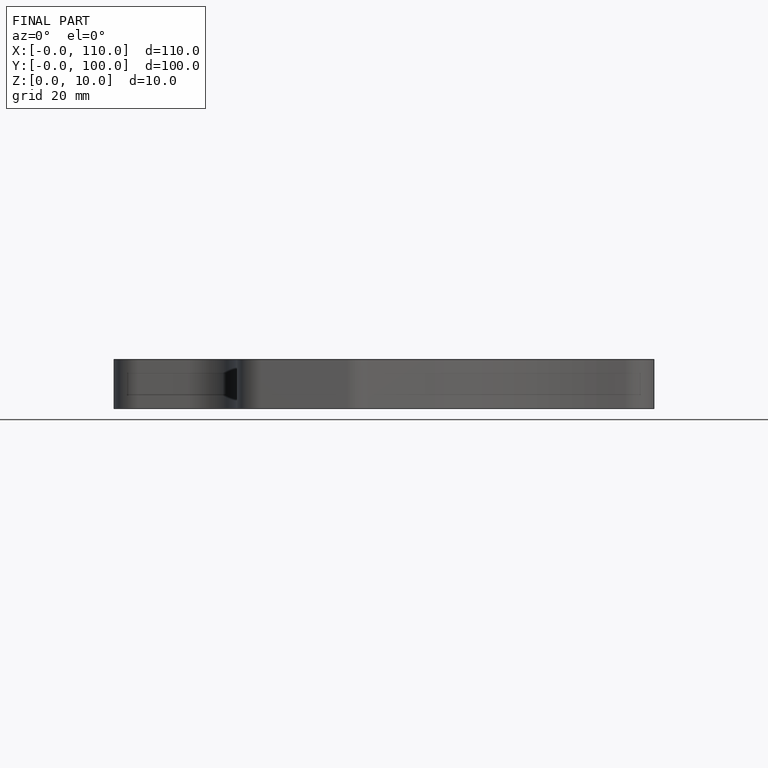
[diagram: finished part — front view with bounding-box wireframe]
